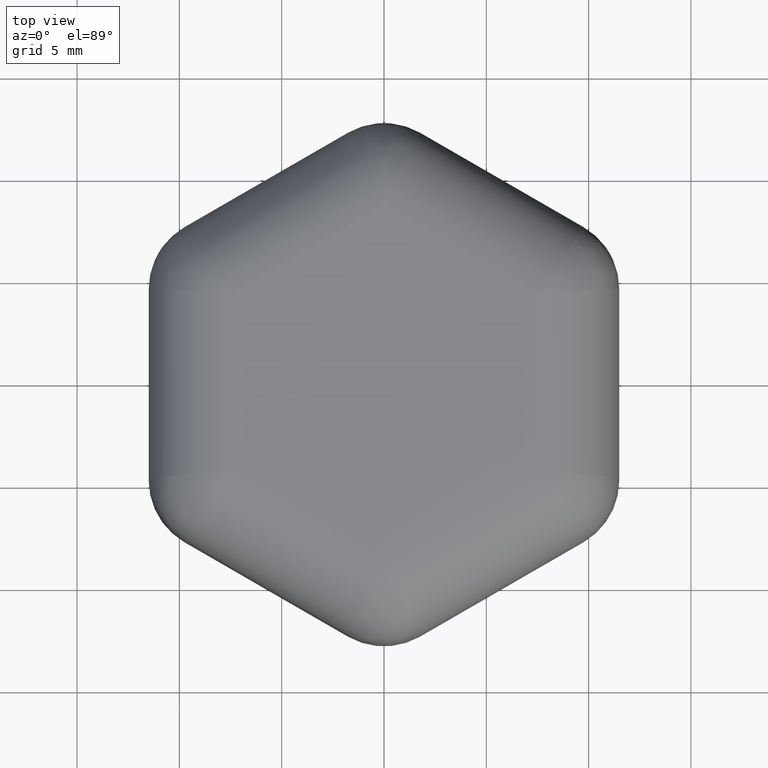
[diagram: clean part render]
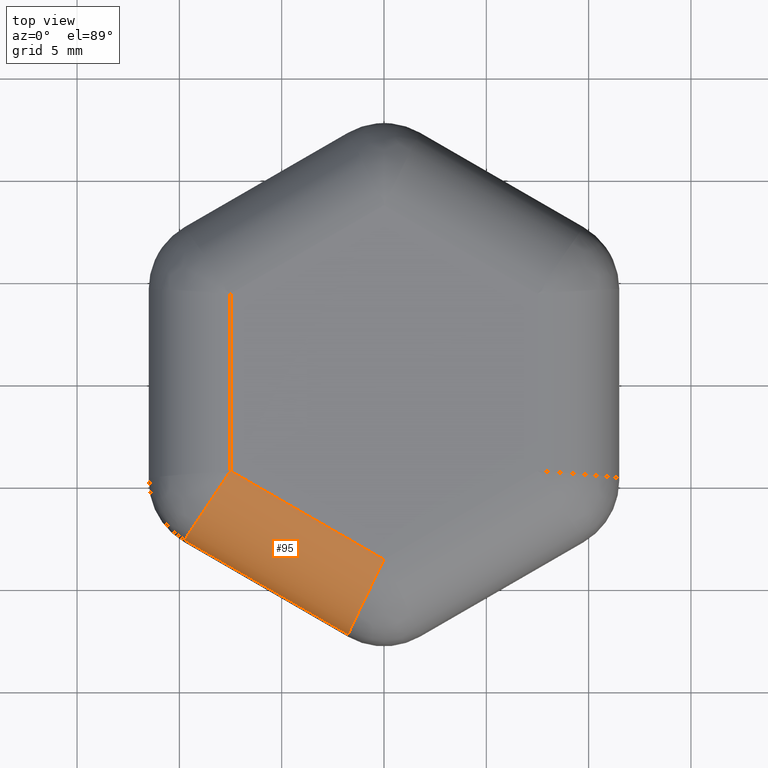
[diagram: same view with one face highlighted and labeled with its STEP entity id]
A machine part, top view. The second image highlights one B-rep face of the part: STEP entity #95.
In plain terms, the highlighted cylindrical surface (partial cylindrical patch) has radius 4 mm, axis along (-0.866, 0.5, -0).
Its self-contained STEP definition (entity closure, byte-faithful):
#95 = ADVANCED_FACE( '', ( #156 ), #157, .T. );
#156 = FACE_OUTER_BOUND( '', #463, .T. );
#157 = CYLINDRICAL_SURFACE( '', #464, 4.00000000000000 );
#463 = EDGE_LOOP( '', ( #1119, #1120, #1121, #1122 ) );
#464 = AXIS2_PLACEMENT_3D( '', #1123, #1124, #1125 );
#1119 = ORIENTED_EDGE( '', *, *, #1309, .T. );
#1120 = ORIENTED_EDGE( '', *, *, #1294, .F. );
#1121 = ORIENTED_EDGE( '', *, *, #1307, .F. );
#1122 = ORIENTED_EDGE( '', *, *, #1299, .F. );
#1123 = CARTESIAN_POINT( '', ( 0.249999999999993, -8.80459160514178, 6.00000000000000 ) );
#1124 = DIRECTION( '', ( -0.866025403784439, 0.500000000000000, -1.06054021204601E-016 ) );
#1125 = DIRECTION( '', ( -0.500000000000000, -0.866025403784439, -6.12303176911188E-017 ) );
#1294 = EDGE_CURVE( '', #1427, #1430, #1431, .T. );
#1299 = EDGE_CURVE( '', #1437, #1438, #1439, .F. );
#1307 = EDGE_CURVE( '', #1438, #1427, #1451, .F. );
#1309 = EDGE_CURVE( '', #1437, #1430, #1453, .F. );
#1427 = VERTEX_POINT( '', #1605 );
#1430 = VERTEX_POINT( '', #1609 );
#1431 = LINE( '', #1610, #1611 );
#1437 = VERTEX_POINT( '', #1620 );
#1438 = VERTEX_POINT( '', #1621 );
#1439 = LINE( '', #1622, #1623 );
#1451 = ELLIPSE( '', #1640, 4.01040313850532, 4.00000000000000 );
#1453 = ELLIPSE( '', #1642, 4.01040313850532, 4.00000000000000 );
#1605 = CARTESIAN_POINT( '', ( -1.75000000000000, -12.2686932202795, 6.00000000000000 ) );
#1609 = CARTESIAN_POINT( '', ( -9.75000000000001, -7.64989106676254, 6.00000000000000 ) );
#1610 = CARTESIAN_POINT( '', ( -9.75000000000000, -7.64989106676253, 6.00000000000000 ) );
#1611 = VECTOR( '', #1772, 1000.00000000000 );
#1620 = CARTESIAN_POINT( '', ( -7.50000000000000, -4.33012701892218, 10.0000000000000 ) );
#1621 = CARTESIAN_POINT( '', ( -6.05503316595470E-015, -8.66025403784437, 10.0000000000000 ) );
#1622 = CARTESIAN_POINT( '', ( 0.249999999999997, -8.80459160514178, 10.0000000000000 ) );
#1623 = VECTOR( '', #1779, 1000.00000000000 );
#1640 = AXIS2_PLACEMENT_3D( '', #1791, #1792, #1793 );
#1642 = AXIS2_PLACEMENT_3D( '', #1797, #1798, #1799 );
#1772 = DIRECTION( '', ( -0.866025403784439, 0.500000000000000, -1.06054021204601E-016 ) );
#1779 = DIRECTION( '', ( -0.866025403784439, 0.500000000000000, -1.06054021204601E-016 ) );
#1791 = CARTESIAN_POINT( '', ( -6.12866962040881E-015, -8.66025403784437, 6.00000000000000 ) );
#1792 = DIRECTION( '', ( -0.899769688435868, 0.436365108334775, -1.10186367743535E-016 ) );
#1793 = DIRECTION( '', ( 0.436365108334775, 0.899769688435868, 5.34375484253156E-017 ) );
#1797 = CARTESIAN_POINT( '', ( -7.50000000000000, -4.33012701892218, 6.00000000000000 ) );
#1798 = DIRECTION( '', ( -0.827788113360999, 0.561040853573283, -1.01371458324052E-016 ) );
#1799 = DIRECTION( '', ( 0.561040853573283, 0.827788113360999, 6.87054194039772E-017 ) );